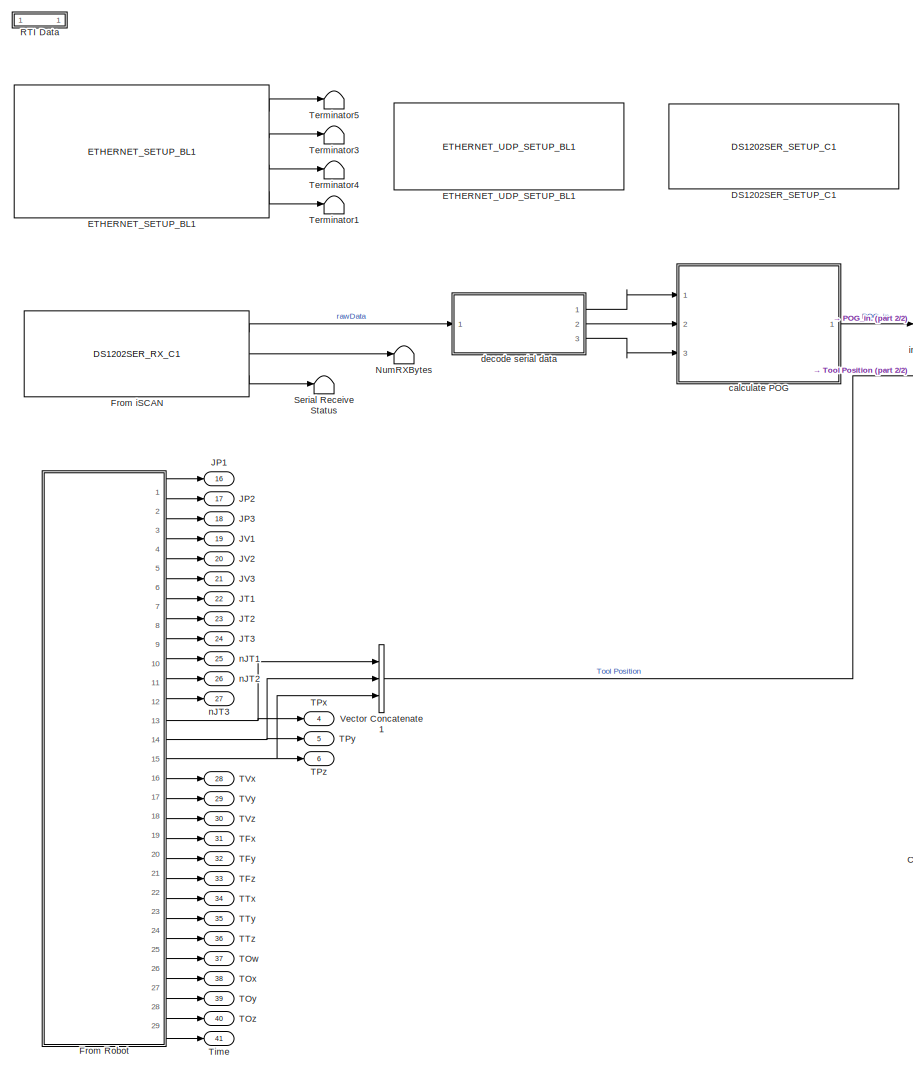
[diagram: root canvas - part 1/2, left side, full height]
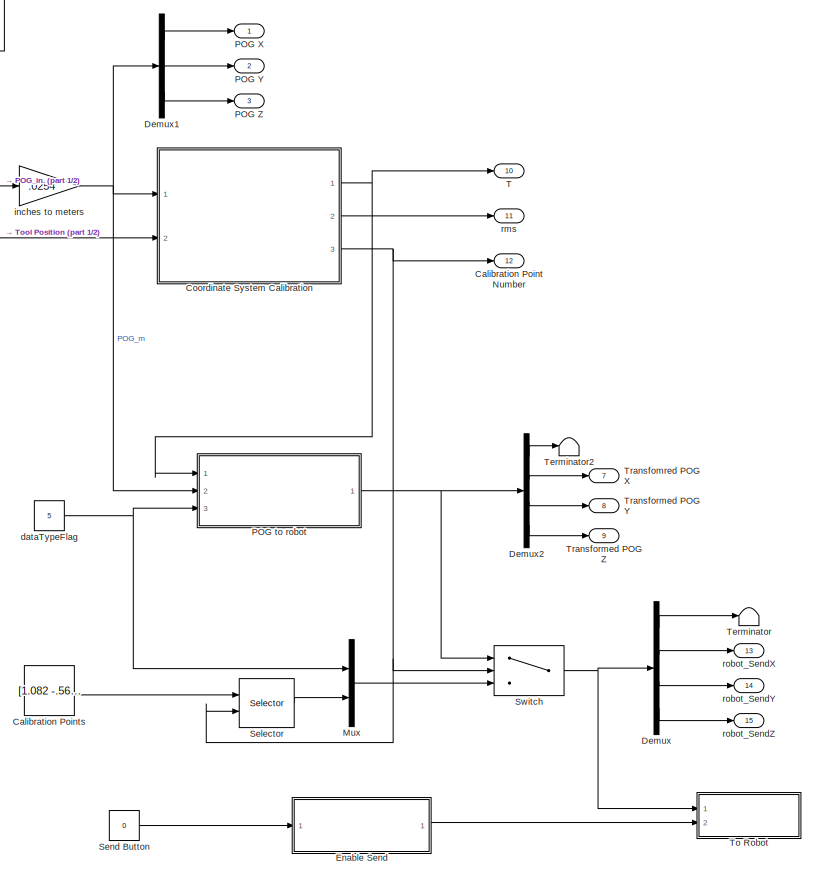
[diagram: root canvas - part 2/2, right side, full height]
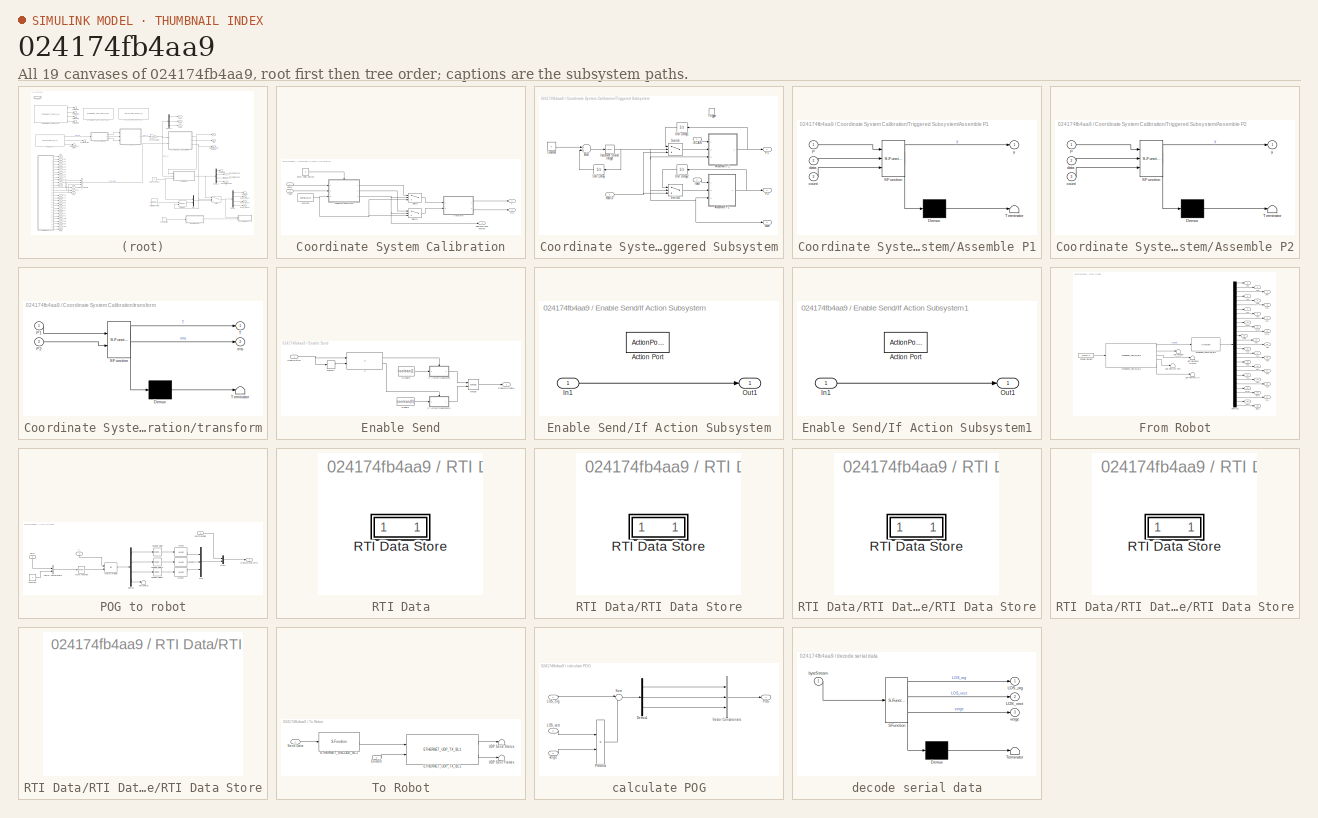
[diagram: thumbnail index - all 19 canvases of the model, root first then tree order]
MODEL slx_024174fb4aa9
KIND model
CONFIG AbsTol = auto
CONFIG EnableMultiTasking = off
CONFIG FixedStep = 0.001
CONFIG MaxStep = auto
CONFIG MinStep = auto
CONFIG PostLoadFcn = , if any(exist('dsrtsu_mdlpostloadfcn', 'file') == [2, 3, 6]), try dsrtsu_mdlpostloadfcn('Execute', bdroot); catch fprintf('Error in PostLoadFcn (dsrtsu_mdlpostloadfcn) for model "%s":\n %s\n', bdroot, lasterr); end, end, \n
CONFIG RelTol = 1e-3
CONFIG SampleTimeConstraint = Unconstrained
CONFIG Solver = ode1
CONFIG SolverName = ode1
CONFIG StartTime = 0.0
CONFIG StopTime = Inf
BLOCK [Outport] Calibration Point Number
  IconDisplay = Port number
  Port = 12
BLOCK [Constant] Calibration Points
  Value = [1.082 -.562 .273; .898 -.561 .225; .758 -.729 .310; .477 -.680 .405; .392 -.487 .317; .510 -.267 .364; .659 -.237 .180; .924 -.322 .241; .813 -.527 .371; .567 -.539 .130; -.047 -.641 .357]
  VectorParams1D = off
BLOCK [SubSystem] Coordinate System Calibration
  Ports = [2, 3]
  RequestExecContextInheritance = off
  Variant = off
BLOCK [Outport] Coordinate System Calibration/Calibration Point Number
  IconDisplay = Port number
  Port = 3
BLOCK [Constant] Coordinate System Calibration/Constant
  Value = zeros(10,3)
  VectorParams1D = off
BLOCK [Constant] Coordinate System Calibration/Enter Point Button
  Value = 0
  VectorParams1D = off
BLOCK [Switch] Coordinate System Calibration/Switch
  InputSameDT = off
  SaturateOnIntegerOverflow = off
  Threshold = 10
BLOCK [Switch] Coordinate System Calibration/Switch1
  InputSameDT = off
  SaturateOnIntegerOverflow = off
  Threshold = 10
BLOCK [Outport] Coordinate System Calibration/T
  IconDisplay = Port number
BLOCK [SubSystem] Coordinate System Calibration/Triggered Subsystem
  Ports = [3, 3, 0, 1]
  RequestExecContextInheritance = off
  TreatAsAtomicUnit = on
  Variant = off
BLOCK [Sum] Coordinate System Calibration/Triggered Subsystem/Add
  InputSameDT = off
  OutDataTypeStr = Inherit: Inherit via internal rule
  Ports = [2, 1]
  SaturateOnIntegerOverflow = off
BLOCK [SubSystem] Coordinate System Calibration/Triggered Subsystem/Assemble P1
  ErrorFcn = Stateflow.Translate.translate
  PermitHierarchicalResolution = ExplicitOnly
  Ports = [3, 1]
  RequestExecContextInheritance = off
  SFBlockType = MATLAB Function
  TreatAsAtomicUnit = on
  Variant = off
BLOCK [Demux] Coordinate System Calibration/Triggered Subsystem/Assemble P1/ Demux 
  Outputs = 1
  Ports = [1, 1]
BLOCK [S-Function] Coordinate System Calibration/Triggered Subsystem/Assemble P1/ SFunction 
  EnableBusSupport = on
  FunctionName = sf_sfun
  PortCounts = [3 2]
  Ports = [3, 2]
  SFcnIsStateOwnerBlock = off
  SFunctionDeploymentMode = off
  Tag = Stateflow S-Function Robot_Eye_Control 1
BLOCK [Terminator] Coordinate System Calibration/Triggered Subsystem/Assemble P1/ Terminator 
BLOCK [Inport] Coordinate System Calibration/Triggered Subsystem/Assemble P1/P
  IconDisplay = Port number
BLOCK [Inport] Coordinate System Calibration/Triggered Subsystem/Assemble P1/count
  IconDisplay = Port number
  Port = 3
BLOCK [Inport] Coordinate System Calibration/Triggered Subsystem/Assemble P1/data
  IconDisplay = Port number
  Port = 2
BLOCK [Outport] Coordinate System Calibration/Triggered Subsystem/Assemble P1/y
  IconDisplay = Port number
BLOCK [SubSystem] Coordinate System Calibration/Triggered Subsystem/Assemble P2
  ErrorFcn = Stateflow.Translate.translate
  PermitHierarchicalResolution = ExplicitOnly
  Ports = [3, 1]
  RequestExecContextInheritance = off
  SFBlockType = MATLAB Function
  TreatAsAtomicUnit = on
  Variant = off
BLOCK [Demux] Coordinate System Calibration/Triggered Subsystem/Assemble P2/ Demux 
  Outputs = 1
  Ports = [1, 1]
BLOCK [S-Function] Coordinate System Calibration/Triggered Subsystem/Assemble P2/ SFunction 
  EnableBusSupport = on
  FunctionName = sf_sfun
  PortCounts = [3 2]
  Ports = [3, 2]
  SFcnIsStateOwnerBlock = off
  SFunctionDeploymentMode = off
  Tag = Stateflow S-Function Robot_Eye_Control 4
BLOCK [Terminator] Coordinate System Calibration/Triggered Subsystem/Assemble P2/ Terminator 
BLOCK [Inport] Coordinate System Calibration/Triggered Subsystem/Assemble P2/P
  IconDisplay = Port number
BLOCK [Inport] Coordinate System Calibration/Triggered Subsystem/Assemble P2/count
  IconDisplay = Port number
  Port = 3
BLOCK [Inport] Coordinate System Calibration/Triggered Subsystem/Assemble P2/data
  IconDisplay = Port number
  Port = 2
BLOCK [Outport] Coordinate System Calibration/Triggered Subsystem/Assemble P2/y
  IconDisplay = Port number
BLOCK [Constant] Coordinate System Calibration/Triggered Subsystem/Constant
  Value = 0
  VectorParams1D = off
BLOCK [Reference] Coordinate System Calibration/Triggered Subsystem/Increment Stored Integer  REF=simulink/Additional Math
& Discrete/Additional Math:
Increment - Decrement/Increment
Stored Integer
  Ports = [1, 1]
  SourceBlock = simulink/Additional Math\n& Discrete/Additional Math:\nIncrement - Decrement/Increment\nStored Integer
  SourceType = Stored Integer Value Increment
BLOCK [Outport] Coordinate System Calibration/Triggered Subsystem/P1
  IconDisplay = Port number
BLOCK [Outport] Coordinate System Calibration/Triggered Subsystem/P2
  IconDisplay = Port number
  Port = 2
BLOCK [Switch] Coordinate System Calibration/Triggered Subsystem/Switch
  Criteria = u2 > Threshold
  InputSameDT = off
  SaturateOnIntegerOverflow = off
BLOCK [Switch] Coordinate System Calibration/Triggered Subsystem/Switch1
  Criteria = u2 > Threshold
  InputSameDT = off
  SaturateOnIntegerOverflow = off
BLOCK [TriggerPort] Coordinate System Calibration/Triggered Subsystem/Trigger
  Ports = []
  StatesWhenEnabling = held
  VariantControl = Variant
BLOCK [UnitDelay] Coordinate System Calibration/Triggered Subsystem/Unit Delay
  InputProcessing = Elements as channels (sample based)
  SampleTime = -1
BLOCK [UnitDelay] Coordinate System Calibration/Triggered Subsystem/Unit Delay1
  InputProcessing = Elements as channels (sample based)
  SampleTime = -1
BLOCK [UnitDelay] Coordinate System Calibration/Triggered Subsystem/Unit Delay2
  InputProcessing = Elements as channels (sample based)
  SampleTime = -1
BLOCK [Outport] Coordinate System Calibration/Triggered Subsystem/count
  IconDisplay = Port number
  Port = 3
BLOCK [Inport] Coordinate System Calibration/Triggered Subsystem/iSCAN
  IconDisplay = Port number
BLOCK [Inport] Coordinate System Calibration/Triggered Subsystem/matrix
  IconDisplay = Port number
  Port = 3
BLOCK [Inport] Coordinate System Calibration/Triggered Subsystem/robot
  IconDisplay = Port number
  Port = 2
BLOCK [Inport] Coordinate System Calibration/iSCAN
  IconDisplay = Port number
BLOCK [Outport] Coordinate System Calibration/rms
  IconDisplay = Port number
  Port = 2
BLOCK [Inport] Coordinate System Calibration/robot
  IconDisplay = Port number
  Port = 2
BLOCK [SubSystem] Coordinate System Calibration/transform
  ErrorFcn = Stateflow.Translate.translate
  PermitHierarchicalResolution = ExplicitOnly
  Ports = [2, 2]
  RequestExecContextInheritance = off
  SFBlockType = MATLAB Function
  TreatAsAtomicUnit = on
  Variant = off
BLOCK [Demux] Coordinate System Calibration/transform/ Demux 
  Outputs = 1
  Ports = [1, 1]
BLOCK [S-Function] Coordinate System Calibration/transform/ SFunction 
  EnableBusSupport = on
  FunctionName = sf_sfun
  PortCounts = [2 3]
  Ports = [2, 3]
  SFcnIsStateOwnerBlock = off
  SFunctionDeploymentMode = off
  Tag = Stateflow S-Function Robot_Eye_Control 2
BLOCK [Terminator] Coordinate System Calibration/transform/ Terminator 
BLOCK [Inport] Coordinate System Calibration/transform/P1
  IconDisplay = Port number
BLOCK [Inport] Coordinate System Calibration/transform/P2
  IconDisplay = Port number
  Port = 2
BLOCK [Outport] Coordinate System Calibration/transform/T
  IconDisplay = Port number
BLOCK [Outport] Coordinate System Calibration/transform/rms
  IconDisplay = Port number
  Port = 2
BLOCK [Reference] DS1202SER_SETUP_C1  REF=rti1202serlib/DS1202SER_SETUP_C1
  Ports = []
  SourceBlock = rti1202serlib/DS1202SER_SETUP_C1
  SourceType = RTI
BLOCK [Demux] Demux
  DisplayOption = bar
  Ports = [1, 4]
BLOCK [Demux] Demux1
  DisplayOption = bar
  Outputs = 3
  Ports = [1, 3]
BLOCK [Demux] Demux2
  DisplayOption = bar
  Ports = [1, 4]
BLOCK [Reference] ETHERNET_SETUP_BL1  REF=rtiethernetlib/ETHERNET_SETUP_BL1
  Ports = [0, 4]
  SourceBlock = rtiethernetlib/ETHERNET_SETUP_BL1
  SourceType = RTI
BLOCK [Reference] ETHERNET_UDP_SETUP_BL1  REF=rtiethernetlib/ETHERNET_UDP_SETUP_BL1
  Ports = []
  SourceBlock = rtiethernetlib/ETHERNET_UDP_SETUP_BL1
  SourceType = RTI
BLOCK [SubSystem] Enable Send
  Ports = [1, 1]
  RequestExecContextInheritance = off
  Variant = off
BLOCK [Constant] Enable Send/Disable
  Value = boolean(1)
BLOCK [Constant] Enable Send/Enable
  Value = boolean(0)
BLOCK [Outport] Enable Send/Enable//Disable
  IconDisplay = Port number
BLOCK [If] Enable Send/If
  IfExpression = u1 > u2
  NumInputs = 2
  Ports = [2, 2]
BLOCK [SubSystem] Enable Send/If Action Subsystem
  Ports = [1, 1, 0, 0, 0, 0, 0, 1]
  RequestExecContextInheritance = off
  TreatAsAtomicUnit = on
  Variant = off
BLOCK [ActionPort] Enable Send/If Action Subsystem/Action Port
  ActionType = then
BLOCK [Inport] Enable Send/If Action Subsystem/In1
  IconDisplay = Port number
BLOCK [Outport] Enable Send/If Action Subsystem/Out1
  IconDisplay = Port number
BLOCK [SubSystem] Enable Send/If Action Subsystem1
  Ports = [1, 1, 0, 0, 0, 0, 0, 1]
  RequestExecContextInheritance = off
  TreatAsAtomicUnit = on
  Variant = off
BLOCK [ActionPort] Enable Send/If Action Subsystem1/Action Port
  ActionType = else
BLOCK [Inport] Enable Send/If Action Subsystem1/In1
  IconDisplay = Port number
BLOCK [Outport] Enable Send/If Action Subsystem1/Out1
  IconDisplay = Port number
BLOCK [Memory] Enable Send/Memory
BLOCK [Merge] Enable Send/Merge
  Ports = [2, 1]
BLOCK [Inport] Enable Send/Send Button
  IconDisplay = Port number
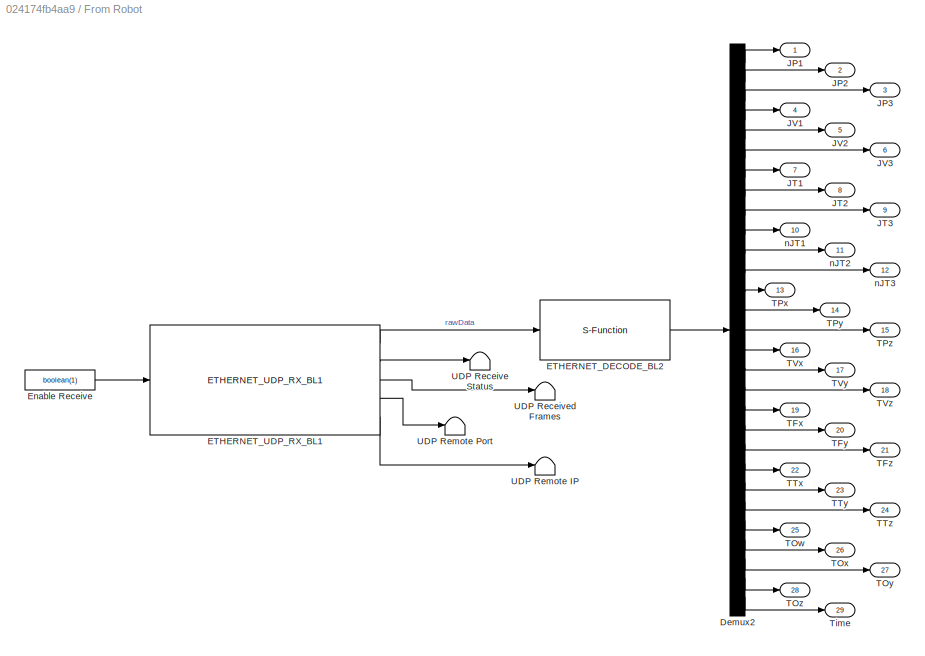
BLOCK [SubSystem] From Robot
  Ports = [0, 29]
  RequestExecContextInheritance = off
  Variant = off
BLOCK [Demux] From Robot/Demux2
  DisplayOption = bar
  Outputs = 29
  Ports = [1, 29]
BLOCK [S-Function] From Robot/ETHERNET_DECODE_BL2
  EnableBusSupport = off
  FunctionName = rtiethernetdecode
  Parameters = byteordering,offset,auto_offset,datatype,one_datatype,sampletime
  Ports = [1, 1]
  SFcnIsStateOwnerBlock = off
  SFunctionDeploymentMode = off
BLOCK [Reference] From Robot/ETHERNET_UDP_RX_BL1  REF=rtiethernetlib/ETHERNET_UDP_RX_BL1
  Ports = [1, 5]
  SourceBlock = rtiethernetlib/ETHERNET_UDP_RX_BL1
  SourceType = RTI
BLOCK [Constant] From Robot/Enable Receive
  Value = boolean(1)
BLOCK [Outport] From Robot/JP1
  IconDisplay = Port number
BLOCK [Outport] From Robot/JP2
  IconDisplay = Port number
  Port = 2
BLOCK [Outport] From Robot/JP3
  IconDisplay = Port number
  Port = 3
BLOCK [Outport] From Robot/JT1
  IconDisplay = Port number
  Port = 7
BLOCK [Outport] From Robot/JT2
  IconDisplay = Port number
  Port = 8
BLOCK [Outport] From Robot/JT3
  IconDisplay = Port number
  Port = 9
BLOCK [Outport] From Robot/JV1
  IconDisplay = Port number
  Port = 4
BLOCK [Outport] From Robot/JV2
  IconDisplay = Port number
  Port = 5
BLOCK [Outport] From Robot/JV3
  IconDisplay = Port number
  Port = 6
BLOCK [Outport] From Robot/TFx
  IconDisplay = Port number
  Port = 19
BLOCK [Outport] From Robot/TFy
  IconDisplay = Port number
  Port = 20
BLOCK [Outport] From Robot/TFz
  IconDisplay = Port number
  Port = 21
BLOCK [Outport] From Robot/TOw
  IconDisplay = Port number
  Port = 25
BLOCK [Outport] From Robot/TOx
  IconDisplay = Port number
  Port = 26
BLOCK [Outport] From Robot/TOy
  IconDisplay = Port number
  Port = 27
BLOCK [Outport] From Robot/TOz
  IconDisplay = Port number
  Port = 28
BLOCK [Outport] From Robot/TPx
  IconDisplay = Port number
  Port = 13
BLOCK [Outport] From Robot/TPy
  IconDisplay = Port number
  Port = 14
BLOCK [Outport] From Robot/TPz
  IconDisplay = Port number
  Port = 15
BLOCK [Outport] From Robot/TTx
  IconDisplay = Port number
  Port = 22
BLOCK [Outport] From Robot/TTy
  IconDisplay = Port number
  Port = 23
BLOCK [Outport] From Robot/TTz
  IconDisplay = Port number
  Port = 24
BLOCK [Outport] From Robot/TVx
  IconDisplay = Port number
  Port = 16
BLOCK [Outport] From Robot/TVy
  IconDisplay = Port number
  Port = 17
BLOCK [Outport] From Robot/TVz
  IconDisplay = Port number
  Port = 18
BLOCK [Outport] From Robot/Time
  IconDisplay = Port number
  Port = 29
BLOCK [Terminator] From Robot/UDP Receive Status
BLOCK [Terminator] From Robot/UDP Received Frames
BLOCK [Terminator] From Robot/UDP Remote IP
BLOCK [Terminator] From Robot/UDP Remote Port
BLOCK [Outport] From Robot/nJT1
  IconDisplay = Port number
  Port = 10
BLOCK [Outport] From Robot/nJT2
  IconDisplay = Port number
  Port = 11
BLOCK [Outport] From Robot/nJT3
  IconDisplay = Port number
  Port = 12
BLOCK [Reference] From iSCAN  REF=rti1202serlib/DS1202SER_RX_C1
  Ports = [0, 3]
  SourceBlock = rti1202serlib/DS1202SER_RX_C1
  SourceType = RTI
BLOCK [Outport] JP1
  IconDisplay = Port number
  Port = 16
BLOCK [Outport] JP2
  IconDisplay = Port number
  Port = 17
BLOCK [Outport] JP3
  IconDisplay = Port number
  Port = 18
BLOCK [Outport] JT1
  IconDisplay = Port number
  Port = 22
BLOCK [Outport] JT2
  IconDisplay = Port number
  Port = 23
BLOCK [Outport] JT3
  IconDisplay = Port number
  Port = 24
BLOCK [Outport] JV1
  IconDisplay = Port number
  Port = 19
BLOCK [Outport] JV2
  IconDisplay = Port number
  Port = 20
BLOCK [Outport] JV3
  IconDisplay = Port number
  Port = 21
BLOCK [Mux] Mux
  DisplayOption = bar
  Inputs = 2
  Ports = [2, 1]
BLOCK [Terminator] NumRXBytes
BLOCK [Outport] POG X
  IconDisplay = Port number
BLOCK [Outport] POG Y
  IconDisplay = Port number
  Port = 2
BLOCK [Outport] POG Z
  IconDisplay = Port number
  Port = 3
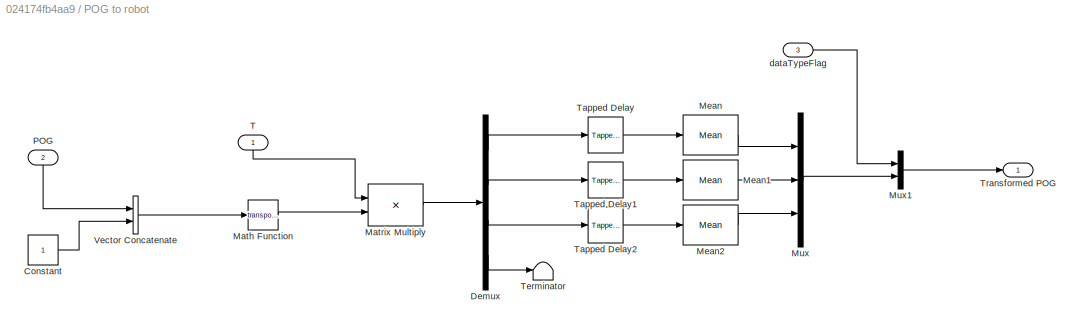
BLOCK [SubSystem] POG to robot
  Ports = [3, 1]
  RequestExecContextInheritance = off
  Variant = off
BLOCK [Constant] POG to robot/Constant
BLOCK [Demux] POG to robot/Demux
  DisplayOption = bar
  Ports = [1, 4]
BLOCK [Math] POG to robot/Math Function
  Operator = transpose
  Ports = [1, 1]
BLOCK [Product] POG to robot/Matrix Multiply
  InputSameDT = off
  Multiplication = Matrix(*)
  OutDataTypeStr = Inherit: Inherit via internal rule
  Ports = [2, 1]
  RndMeth = Floor
  SaturateOnIntegerOverflow = off
BLOCK [Reference] POG to robot/Mean  REF=dspstat3/Mean
  Ports = [1, 1]
  SourceBlock = dspstat3/Mean
  SourceType = Mean
  UserDataPersistent = on
BLOCK [Reference] POG to robot/Mean1  REF=dspstat3/Mean
  Ports = [1, 1]
  SourceBlock = dspstat3/Mean
  SourceType = Mean
  UserDataPersistent = on
BLOCK [Reference] POG to robot/Mean2  REF=dspstat3/Mean
  Ports = [1, 1]
  SourceBlock = dspstat3/Mean
  SourceType = Mean
  UserDataPersistent = on
BLOCK [Mux] POG to robot/Mux
  DisplayOption = bar
  Inputs = 3
  Ports = [3, 1]
BLOCK [Mux] POG to robot/Mux1
  DisplayOption = bar
  Inputs = 2
  Ports = [2, 1]
BLOCK [Inport] POG to robot/POG
  IconDisplay = Port number
  Port = 2
BLOCK [Inport] POG to robot/T
  IconDisplay = Port number
BLOCK [Reference] POG to robot/Tapped Delay  REF=simulink/Discrete/Tapped Delay
  Ports = [1, 1]
  SourceBlock = simulink/Discrete/Tapped Delay
  SourceType = Tapped Delay Line
BLOCK [Reference] POG to robot/Tapped Delay1  REF=simulink/Discrete/Tapped Delay
  Ports = [1, 1]
  SourceBlock = simulink/Discrete/Tapped Delay
  SourceType = Tapped Delay Line
BLOCK [Reference] POG to robot/Tapped Delay2  REF=simulink/Discrete/Tapped Delay
  Ports = [1, 1]
  SourceBlock = simulink/Discrete/Tapped Delay
  SourceType = Tapped Delay Line
BLOCK [Terminator] POG to robot/Terminator
BLOCK [Outport] POG to robot/Transformed POG
  IconDisplay = Port number
BLOCK [Concatenate] POG to robot/Vector Concatenate
  Ports = [2, 1]
BLOCK [Inport] POG to robot/dataTypeFlag
  IconDisplay = Port number
  Port = 3
BLOCK [SubSystem] RTI Data
  CopyFcn = if exist('rtidc'), try,  rtidc('DataHostBlockClbCopy', gcbh); catch, disp(['Warning: ''CopyFcn'' for RTI Data block failed: ' lasterr]); end, end,
  DeleteFcn = if exist('rtidc'), try,  rtidc('DataHostBlockClbDelete', gcbh); catch, disp(['Warning: ''DeleteFcn'' for RTI Data block failed: ' lasterr]); end, end,
  LoadFcn = if exist('rtidc'), try,  rtidc('DataHostBlockClbLoad', gcbh); catch, disp(['Warning: ''LoadFcn'' for RTI Data block failed: ' lasterr]); end, end,
  ModelCloseFcn = if exist('rtidc'), try,  rtidc('DataHostBlockClbModelClose', gcbh); catch, disp(['Warning: ''ModelCloseFcn'' for RTI Data block failed: ' lasterr]); end, end,
  NameChangeFcn = if exist('rtidc'), try,  rtidc('DataHostBlockClbNameChange', gcbh); catch, disp(['Warning: ''NameChangeFcn'' for RTI Data block failed: ' lasterr]); end, end,
  Ports = []
  PostSaveFcn = if exist('rtidc'), try,  rtidc('DataHostBlockClbPostSave', gcbh); catch, disp(['Warning: ''PostSaveFcn'' for RTI Data block failed: ' lasterr]); end, end,
  PreSaveFcn = if exist('rtidc'), try,  rtidc('DataHostBlockClbPreSave', gcbh); catch, disp(['Warning: ''PreSaveFcn'' for RTI Data block failed: ' lasterr]); end, end,
  RequestExecContextInheritance = off
  Tag = struct('RTIDataServer',struct('RTIDataServerVs','2','RTIModelDescription','struct(''main'',''Robot_Eye_Control'',''sub'','''',''isMp'',0)'))
  Variant = off
BLOCK [SubSystem] RTI Data/RTI Data Store
  Ports = []
  RequestExecContextInheritance = off
  Tag = struct('public',struct('sub',struct('name',{{'Robot_Eye_Control'}},'data',{{struct('TH',struct('thTaskInfo',struct('taskType',{'TIMER','HWINT','TMRINT','SWINT','GLINT'},'tasksNumOf',{1,0,0,0,0},'srcIds',{{'TIMERA'},{},{},{},{}},'taskNames',{{['Timer Task 1']},{},{},{},{}})),'th_tc',struct('dataType','TASK','taskGroupId','','taskGroupList',{{}},'taskSchedulingPolicy','FCFS','taskType','TIMER','blkh...<+751ch>
  Variant = off
BLOCK [SubSystem] RTI Data/RTI Data Store/RTI Data Store
  Ports = []
  RequestExecContextInheritance = off
  Variant = off
BLOCK [SubSystem] RTI Data/RTI Data Store/RTI Data Store/RTI Data Store
  Ports = []
  RequestExecContextInheritance = off
  Variant = off
BLOCK [SubSystem] RTI Data/RTI Data Store/RTI Data Store/RTI Data Store/RTI Data Store
  Ports = []
  RequestExecContextInheritance = off
  Variant = off
BLOCK [Selector] Selector
  IndexMode = Zero-based
  IndexOptions = Index vector (port),Select all
  Indices = [1 3],1
  InputPortWidth = 3
  NumberOfDimensions = 2
  OutputSizes = 1,1
  Ports = [2, 1]
BLOCK [Constant] Send Button
  Value = 0
BLOCK [Terminator] Serial Receive Status
BLOCK [Switch] Switch
  InputSameDT = off
  SaturateOnIntegerOverflow = off
  Threshold = 10
BLOCK [Outport] T
  IconDisplay = Port number
  Port = 10
BLOCK [Outport] TFx
  IconDisplay = Port number
  Port = 31
BLOCK [Outport] TFy
  IconDisplay = Port number
  Port = 32
BLOCK [Outport] TFz
  IconDisplay = Port number
  Port = 33
BLOCK [Outport] TOw
  IconDisplay = Port number
  Port = 37
BLOCK [Outport] TOx
  IconDisplay = Port number
  Port = 38
BLOCK [Outport] TOy
  IconDisplay = Port number
  Port = 39
BLOCK [Outport] TOz
  IconDisplay = Port number
  Port = 40
BLOCK [Outport] TPx
  IconDisplay = Port number
  Port = 4
BLOCK [Outport] TPy
  IconDisplay = Port number
  Port = 5
BLOCK [Outport] TPz
  IconDisplay = Port number
  Port = 6
BLOCK [Outport] TTx
  IconDisplay = Port number
  Port = 34
BLOCK [Outport] TTy
  IconDisplay = Port number
  Port = 35
BLOCK [Outport] TTz
  IconDisplay = Port number
  Port = 36
BLOCK [Outport] TVx
  IconDisplay = Port number
  Port = 28
BLOCK [Outport] TVy
  IconDisplay = Port number
  Port = 29
BLOCK [Outport] TVz
  IconDisplay = Port number
  Port = 30
BLOCK [Terminator] Terminator
BLOCK [Terminator] Terminator1
BLOCK [Terminator] Terminator2
BLOCK [Terminator] Terminator3
BLOCK [Terminator] Terminator4
BLOCK [Terminator] Terminator5
BLOCK [Outport] Time
  IconDisplay = Port number
  Port = 41
BLOCK [SubSystem] To Robot
  Ports = [2]
  RequestExecContextInheritance = off
  Variant = off
BLOCK [S-Function] To Robot/ETHERNET_ENCODE_BL1
  EnableBusSupport = off
  FunctionName = rtiethernetencode
  Parameters = byteordering,offset,auto_offset,datatype,one_datatype,sampletime
  Ports = [1, 1]
  SFcnIsStateOwnerBlock = off
  SFunctionDeploymentMode = off
BLOCK [Reference] To Robot/ETHERNET_UDP_TX_BL1  REF=rtiethernetlib/ETHERNET_UDP_TX_BL1
  Ports = [2, 2]
  SourceBlock = rtiethernetlib/ETHERNET_UDP_TX_BL1
  SourceType = RTI
BLOCK [Inport] To Robot/Enable
  IconDisplay = Port number
  Port = 2
BLOCK [Inport] To Robot/Send Data
  IconDisplay = Port number
BLOCK [Terminator] To Robot/UDP Send Status
BLOCK [Terminator] To Robot/UDP Sent Frames
BLOCK [Outport] Transfomred POG X
  IconDisplay = Port number
  Port = 7
BLOCK [Outport] Transformed POG Y
  IconDisplay = Port number
  Port = 8
BLOCK [Outport] Transformed POG Z
  IconDisplay = Port number
  Port = 9
BLOCK [Concatenate] Vector Concatenate1
  ConcatenateDimension = 2
  Mode = Multidimensional array
  NumInputs = 3
  Ports = [3, 1]
BLOCK [SubSystem] calculate POG
  Ports = [3, 1]
  RequestExecContextInheritance = off
  Variant = off
BLOCK [Demux] calculate POG/Demux1
  DisplayOption = bar
  Outputs = 3
  Ports = [1, 3]
BLOCK [Inport] calculate POG/LOS_org
  IconDisplay = Port number
BLOCK [Inport] calculate POG/LOS_vect
  IconDisplay = Port number
  Port = 2
BLOCK [Outport] calculate POG/POG
  IconDisplay = Port number
BLOCK [Product] calculate POG/Product
  InputSameDT = off
  OutDataTypeStr = Inherit: Inherit via internal rule
  Ports = [2, 1]
  RndMeth = Floor
  SaturateOnIntegerOverflow = off
BLOCK [Sum] calculate POG/Sum
  IconShape = round
  InputSameDT = off
  Inputs = |++
  OutDataTypeStr = Inherit: Inherit via internal rule
  Ports = [2, 1]
  SaturateOnIntegerOverflow = off
BLOCK [Concatenate] calculate POG/Vector Concatenate
  ConcatenateDimension = 2
  Mode = Multidimensional array
  NumInputs = 3
  Ports = [3, 1]
BLOCK [Inport] calculate POG/verge
  IconDisplay = Port number
  Port = 3
BLOCK [Constant] dataTypeFlag
  Value = 5
BLOCK [SubSystem] decode serial data
  ErrorFcn = Stateflow.Translate.translate
  PermitHierarchicalResolution = ExplicitOnly
  Ports = [1, 3]
  RequestExecContextInheritance = off
  SFBlockType = MATLAB Function
  TreatAsAtomicUnit = on
  Variant = off
BLOCK [Demux] decode serial data/ Demux 
  Outputs = 1
  Ports = [1, 1]
BLOCK [S-Function] decode serial data/ SFunction 
  EnableBusSupport = on
  FunctionName = sf_sfun
  PortCounts = [1 4]
  Ports = [1, 4]
  SFcnIsStateOwnerBlock = off
  SFunctionDeploymentMode = off
  Tag = Stateflow S-Function Robot_Eye_Control 3
BLOCK [Terminator] decode serial data/ Terminator 
BLOCK [Outport] decode serial data/LOS_org
  IconDisplay = Port number
BLOCK [Outport] decode serial data/LOS_vect
  IconDisplay = Port number
  Port = 2
BLOCK [Inport] decode serial data/byteStream
  IconDisplay = Port number
BLOCK [Outport] decode serial data/verge
  IconDisplay = Port number
  Port = 3
BLOCK [Gain] inches to meters
  Gain = .0254
  OutDataTypeStr = Inherit: Inherit via internal rule
  ParamDataTypeStr = Inherit: Inherit via internal rule
  SaturateOnIntegerOverflow = off
BLOCK [Outport] nJT1
  IconDisplay = Port number
  Port = 25
BLOCK [Outport] nJT2
  IconDisplay = Port number
  Port = 26
BLOCK [Outport] nJT3
  IconDisplay = Port number
  Port = 27
BLOCK [Outport] rms
  IconDisplay = Port number
  Port = 11
BLOCK [Outport] robot_SendX
  IconDisplay = Port number
  Port = 13
BLOCK [Outport] robot_SendY
  IconDisplay = Port number
  Port = 14
BLOCK [Outport] robot_SendZ
  IconDisplay = Port number
  Port = 15
LINE Calibration Points:1 -> Selector:1
NET Coordinate System Calibration/Constant:1 -> Coordinate System Calibration/Switch1:3, Coordinate System Calibration/Switch:3, Coordinate System Calibration/Triggered Subsystem:3
LINE Coordinate System Calibration/Enter Point Button:1 -> Coordinate System Calibration/Triggered Subsystem:trigger
LINE Coordinate System Calibration/Switch1:1 -> Coordinate System Calibration/transform:2
LINE Coordinate System Calibration/Switch:1 -> Coordinate System Calibration/transform:1
LINE Coordinate System Calibration/Triggered Subsystem/Add:1 -> Coordinate System Calibration/Triggered Subsystem/Increment Stored Integer:1
NET Coordinate System Calibration/Triggered Subsystem/Assemble P1:1 -> Coordinate System Calibration/Triggered Subsystem/P1:1, Coordinate System Calibration/Triggered Subsystem/Unit Delay1:1
NET Coordinate System Calibration/Triggered Subsystem/Assemble P2:1 -> Coordinate System Calibration/Triggered Subsystem/P2:1, Coordinate System Calibration/Triggered Subsystem/Unit Delay2:1
LINE Coordinate System Calibration/Triggered Subsystem/Constant:1 -> Coordinate System Calibration/Triggered Subsystem/Add:1
NET Coordinate System Calibration/Triggered Subsystem/Increment Stored Integer:1 -> Coordinate System Calibration/Triggered Subsystem/Assemble P1:3, Coordinate System Calibration/Triggered Subsystem/Assemble P2:3, Coordinate System Calibration/Triggered Subsystem/Switch1:2, Coordinate System Calibration/Triggered Subsystem/Switch:2, Coordinate System Calibration/Triggered Subsystem/Unit Delay:1, Coordinate System Calibration/Triggered Subsystem/count:1
LINE Coordinate System Calibration/Triggered Subsystem/Switch1:1 -> Coordinate System Calibration/Triggered Subsystem/Assemble P2:2
LINE Coordinate System Calibration/Triggered Subsystem/Switch:1 -> Coordinate System Calibration/Triggered Subsystem/Assemble P1:2
LINE Coordinate System Calibration/Triggered Subsystem/Unit Delay1:1 -> Coordinate System Calibration/Triggered Subsystem/Switch:1
LINE Coordinate System Calibration/Triggered Subsystem/Unit Delay2:1 -> Coordinate System Calibration/Triggered Subsystem/Switch1:1
LINE Coordinate System Calibration/Triggered Subsystem/Unit Delay:1 -> Coordinate System Calibration/Triggered Subsystem/Add:2
LINE Coordinate System Calibration/Triggered Subsystem/iSCAN:1 -> Coordinate System Calibration/Triggered Subsystem/Assemble P1:1
NET Coordinate System Calibration/Triggered Subsystem/matrix:1 -> Coordinate System Calibration/Triggered Subsystem/Switch1:3, Coordinate System Calibration/Triggered Subsystem/Switch:3
LINE Coordinate System Calibration/Triggered Subsystem/robot:1 -> Coordinate System Calibration/Triggered Subsystem/Assemble P2:1
LINE Coordinate System Calibration/Triggered Subsystem:1 -> Coordinate System Calibration/Switch:1
LINE Coordinate System Calibration/Triggered Subsystem:2 -> Coordinate System Calibration/Switch1:1
NET Coordinate System Calibration/Triggered Subsystem:3 -> Coordinate System Calibration/Calibration Point Number:1, Coordinate System Calibration/Switch1:2, Coordinate System Calibration/Switch:2
LINE Coordinate System Calibration/iSCAN:1 -> Coordinate System Calibration/Triggered Subsystem:1
LINE Coordinate System Calibration/robot:1 -> Coordinate System Calibration/Triggered Subsystem:2
LINE Coordinate System Calibration/transform:1 -> Coordinate System Calibration/T:1
LINE Coordinate System Calibration/transform:2 -> Coordinate System Calibration/rms:1
NET Coordinate System Calibration:1 -> POG to robot:1, T:1
LINE Coordinate System Calibration:2 -> rms:1
NET Coordinate System Calibration:3 -> Calibration Point Number:1, Selector:2, Switch:2
LINE Demux1:1 -> POG X:1
LINE Demux1:2 -> POG Y:1
LINE Demux1:3 -> POG Z:1
LINE Demux2:1 -> Terminator2:1
LINE Demux2:2 -> Transfomred POG X:1
LINE Demux2:3 -> Transformed POG Y:1
LINE Demux2:4 -> Transformed POG Z:1
LINE Demux:1 -> Terminator:1
LINE Demux:2 -> robot_SendX:1
LINE Demux:3 -> robot_SendY:1
LINE Demux:4 -> robot_SendZ:1
LINE ETHERNET_SETUP_BL1:1 -> Terminator5:1
LINE ETHERNET_SETUP_BL1:2 -> Terminator3:1
LINE ETHERNET_SETUP_BL1:3 -> Terminator4:1
LINE ETHERNET_SETUP_BL1:4 -> Terminator1:1
LINE Enable Send/Disable:1 -> Enable Send/If Action Subsystem:1
LINE Enable Send/Enable:1 -> Enable Send/If Action Subsystem1:1
LINE Enable Send/If Action Subsystem/In1:1 -> Enable Send/If Action Subsystem/Out1:1
LINE Enable Send/If Action Subsystem1/In1:1 -> Enable Send/If Action Subsystem1/Out1:1
LINE Enable Send/If Action Subsystem1:1 -> Enable Send/Merge:2
LINE Enable Send/If Action Subsystem:1 -> Enable Send/Merge:1
LINE Enable Send/If:1 -> Enable Send/If Action Subsystem:ifaction
LINE Enable Send/If:2 -> Enable Send/If Action Subsystem1:ifaction
LINE Enable Send/Memory:1 -> Enable Send/If:2
LINE Enable Send/Merge:1 -> Enable Send/Enable//Disable:1
NET Enable Send/Send Button:1 -> Enable Send/If:1, Enable Send/Memory:1
LINE Enable Send:1 -> To Robot:2
LINE From Robot/Demux2:1 -> From Robot/JP1:1
LINE From Robot/Demux2:10 -> From Robot/nJT1:1
LINE From Robot/Demux2:11 -> From Robot/nJT2:1
LINE From Robot/Demux2:12 -> From Robot/nJT3:1
LINE From Robot/Demux2:13 -> From Robot/TPx:1
LINE From Robot/Demux2:14 -> From Robot/TPy:1
LINE From Robot/Demux2:15 -> From Robot/TPz:1
LINE From Robot/Demux2:16 -> From Robot/TVx:1
LINE From Robot/Demux2:17 -> From Robot/TVy:1
LINE From Robot/Demux2:18 -> From Robot/TVz:1
LINE From Robot/Demux2:19 -> From Robot/TFx:1
LINE From Robot/Demux2:2 -> From Robot/JP2:1
LINE From Robot/Demux2:20 -> From Robot/TFy:1
LINE From Robot/Demux2:21 -> From Robot/TFz:1
LINE From Robot/Demux2:22 -> From Robot/TTx:1
LINE From Robot/Demux2:23 -> From Robot/TTy:1
LINE From Robot/Demux2:24 -> From Robot/TTz:1
LINE From Robot/Demux2:25 -> From Robot/TOw:1
LINE From Robot/Demux2:26 -> From Robot/TOx:1
LINE From Robot/Demux2:27 -> From Robot/TOy:1
LINE From Robot/Demux2:28 -> From Robot/TOz:1
LINE From Robot/Demux2:29 -> From Robot/Time:1
LINE From Robot/Demux2:3 -> From Robot/JP3:1
LINE From Robot/Demux2:4 -> From Robot/JV1:1
LINE From Robot/Demux2:5 -> From Robot/JV2:1
LINE From Robot/Demux2:6 -> From Robot/JV3:1
LINE From Robot/Demux2:7 -> From Robot/JT1:1
LINE From Robot/Demux2:8 -> From Robot/JT2:1
LINE From Robot/Demux2:9 -> From Robot/JT3:1
LINE From Robot/ETHERNET_DECODE_BL2:1 -> From Robot/Demux2:1
LINE From Robot/ETHERNET_UDP_RX_BL1:1 -> From Robot/ETHERNET_DECODE_BL2:1
LINE From Robot/ETHERNET_UDP_RX_BL1:2 -> From Robot/UDP Receive Status:1
LINE From Robot/ETHERNET_UDP_RX_BL1:3 -> From Robot/UDP Received Frames:1
LINE From Robot/ETHERNET_UDP_RX_BL1:4 -> From Robot/UDP Remote Port:1
LINE From Robot/ETHERNET_UDP_RX_BL1:5 -> From Robot/UDP Remote IP:1
LINE From Robot/Enable Receive:1 -> From Robot/ETHERNET_UDP_RX_BL1:1
LINE From Robot:1 -> JP1:1
LINE From Robot:10 -> nJT1:1
LINE From Robot:11 -> nJT2:1
LINE From Robot:12 -> nJT3:1
NET From Robot:13 -> TPx:1, Vector Concatenate1:1
NET From Robot:14 -> TPy:1, Vector Concatenate1:2
NET From Robot:15 -> TPz:1, Vector Concatenate1:3
LINE From Robot:16 -> TVx:1
LINE From Robot:17 -> TVy:1
LINE From Robot:18 -> TVz:1
LINE From Robot:19 -> TFx:1
LINE From Robot:2 -> JP2:1
LINE From Robot:20 -> TFy:1
LINE From Robot:21 -> TFz:1
LINE From Robot:22 -> TTx:1
LINE From Robot:23 -> TTy:1
LINE From Robot:24 -> TTz:1
LINE From Robot:25 -> TOw:1
LINE From Robot:26 -> TOx:1
LINE From Robot:27 -> TOy:1
LINE From Robot:28 -> TOz:1
LINE From Robot:29 -> Time:1
LINE From Robot:3 -> JP3:1
LINE From Robot:4 -> JV1:1
LINE From Robot:5 -> JV2:1
LINE From Robot:6 -> JV3:1
LINE From Robot:7 -> JT1:1
LINE From Robot:8 -> JT2:1
LINE From Robot:9 -> JT3:1
LINE From iSCAN:1 -> decode serial data:1
LINE From iSCAN:2 -> NumRXBytes:1
LINE From iSCAN:3 -> Serial Receive Status:1
LINE Mux:1 -> Switch:3
LINE POG to robot/Constant:1 -> POG to robot/Vector Concatenate:2
LINE POG to robot/Demux:1 -> POG to robot/Tapped Delay:1
LINE POG to robot/Demux:2 -> POG to robot/Tapped Delay1:1
LINE POG to robot/Demux:3 -> POG to robot/Tapped Delay2:1
LINE POG to robot/Demux:4 -> POG to robot/Terminator:1
LINE POG to robot/Math Function:1 -> POG to robot/Matrix Multiply:2
LINE POG to robot/Matrix Multiply:1 -> POG to robot/Demux:1
LINE POG to robot/Mean1:1 -> POG to robot/Mux:2
LINE POG to robot/Mean2:1 -> POG to robot/Mux:3
LINE POG to robot/Mean:1 -> POG to robot/Mux:1
LINE POG to robot/Mux1:1 -> POG to robot/Transformed POG:1
LINE POG to robot/Mux:1 -> POG to robot/Mux1:2
LINE POG to robot/POG:1 -> POG to robot/Vector Concatenate:1
LINE POG to robot/T:1 -> POG to robot/Matrix Multiply:1
LINE POG to robot/Tapped Delay1:1 -> POG to robot/Mean1:1
LINE POG to robot/Tapped Delay2:1 -> POG to robot/Mean2:1
LINE POG to robot/Tapped Delay:1 -> POG to robot/Mean:1
LINE POG to robot/Vector Concatenate:1 -> POG to robot/Math Function:1
LINE POG to robot/dataTypeFlag:1 -> POG to robot/Mux1:1
NET POG to robot:1 -> Demux2:1, Switch:1
LINE Selector:1 -> Mux:2
LINE Send Button:1 -> Enable Send:1
NET Switch:1 -> Demux:1, To Robot:1
LINE To Robot/ETHERNET_ENCODE_BL1:1 -> To Robot/ETHERNET_UDP_TX_BL1:1
LINE To Robot/ETHERNET_UDP_TX_BL1:1 -> To Robot/UDP Send Status:1
LINE To Robot/ETHERNET_UDP_TX_BL1:2 -> To Robot/UDP Sent Frames:1
LINE To Robot/Enable:1 -> To Robot/ETHERNET_UDP_TX_BL1:2
LINE To Robot/Send Data:1 -> To Robot/ETHERNET_ENCODE_BL1:1
LINE Vector Concatenate1:1 -> Coordinate System Calibration:2
LINE calculate POG/Demux1:1 -> calculate POG/Vector Concatenate:1
LINE calculate POG/Demux1:2 -> calculate POG/Vector Concatenate:2
LINE calculate POG/Demux1:3 -> calculate POG/Vector Concatenate:3
LINE calculate POG/LOS_org:1 -> calculate POG/Sum:1
LINE calculate POG/LOS_vect:1 -> calculate POG/Product:1
LINE calculate POG/Product:1 -> calculate POG/Sum:2
LINE calculate POG/Sum:1 -> calculate POG/Demux1:1
LINE calculate POG/Vector Concatenate:1 -> calculate POG/POG:1
LINE calculate POG/verge:1 -> calculate POG/Product:2
LINE calculate POG:1 -> inches to meters:1
NET dataTypeFlag:1 -> Mux:1, POG to robot:3
LINE decode serial data:1 -> calculate POG:1
LINE decode serial data:2 -> calculate POG:2
LINE decode serial data:3 -> calculate POG:3
NET inches to meters:1 -> Coordinate System Calibration:1, Demux1:1, POG to robot:2
note: NET lines group one-source signal fan-out (src -> all destinations, sorted); 1:1 wires keep LINE
CHART Coordinate System Calibration/Triggered
Subsystem/Assemble P1 states=1 transitions=1
  STATE_LABEL 'eML_blk_kernel()'
  STATE_LABEL 'SCRIPT:\nfunction y = fcn(P, data, count)\n% Inputs:\n% data..................[10x3]\n% count..................[1x1]\n\n% Output:\n% y.....................[10x3]\n\nif count > 0\n    data(count,:) = P;\nend\ny = data;\n'
CHART Coordinate System Calibration/transform states=1 transitions=1
  STATE_LABEL 'eML_blk_kernel()'
  STATE_LABEL 'SCRIPT:\nfunction[T,rms] = transform(P1,P2)\n% Estimates rigid body pose T from marker coordinates\n%\n% Input:\n%\tP1\t\t(N x 3 matrix) coordinates of N markers in coordinate system 1\n%\tP2\t\t(N x 3 matrix) coordinates of the same markers, now measured in coordinate system 2\n%\n% Output:\n%\tT\t\t(4x4 matrix) homogeneous transformation matrix that transforms P1 coordinates\n%\t\t\tto P2 coordinates (P2 = T*P1)\n%\trm...<+1255ch>'
CHART decode serial data states=1 transitions=1
  STATE_LABEL 'eML_blk_kernel()'
  STATE_LABEL "SCRIPT:\nfunction [LOS_org, LOS_vect, verge] = decode(byteStream)\nvalues = zeros(((length(byteStream)-2)/2),1);\nii = 1;\nbyteStream = cast(byteStream, 'double');\n    for i = 3:2:length(byteStream)\n        if 0.0 <= byteStream(i+1) && byteStream(i+1) <= 20.0\n            values(ii,1) = (byteStream(i+1)*255.0 + byteStream(i))/10.0;\n        elseif 253.0 <= byteStream(i+1) && byteStream(i+1) <= 255.0\n   ...<+249ch>"
CHART Coordinate System Calibration/Triggered
Subsystem/Assemble P2 states=1 transitions=1
  STATE_LABEL 'eML_blk_kernel()'
  STATE_LABEL 'SCRIPT:\nfunction y = fcn(P, data, count)\n% Inputs:\n% data..................[10x3]\n% count..................[1x1]\n\n% Output:\n% y.....................[10x3]\n\nif count > 0\n    data(count,:) = P;\nend\ny = data;\n'
